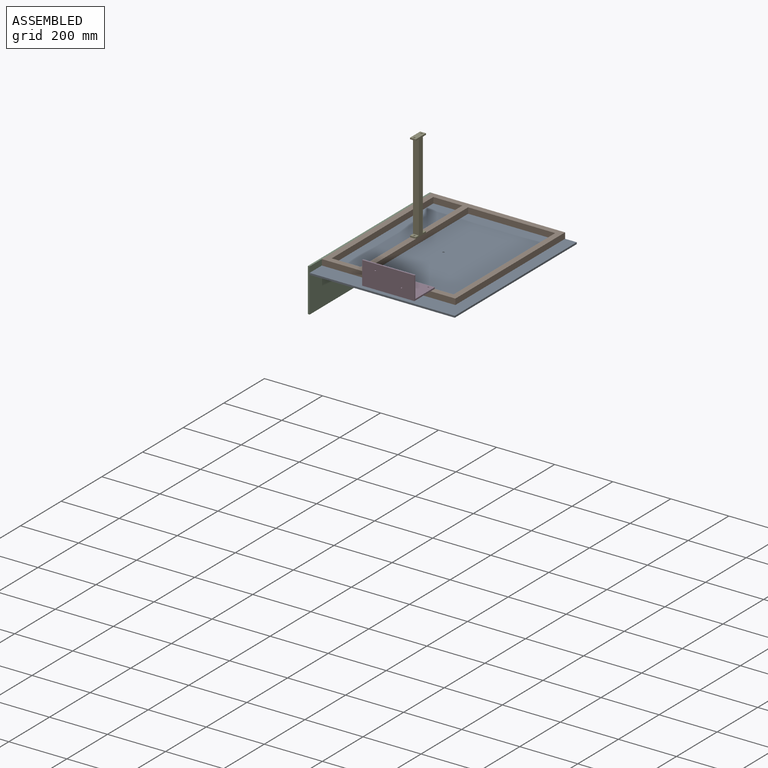
[diagram: assembled view]
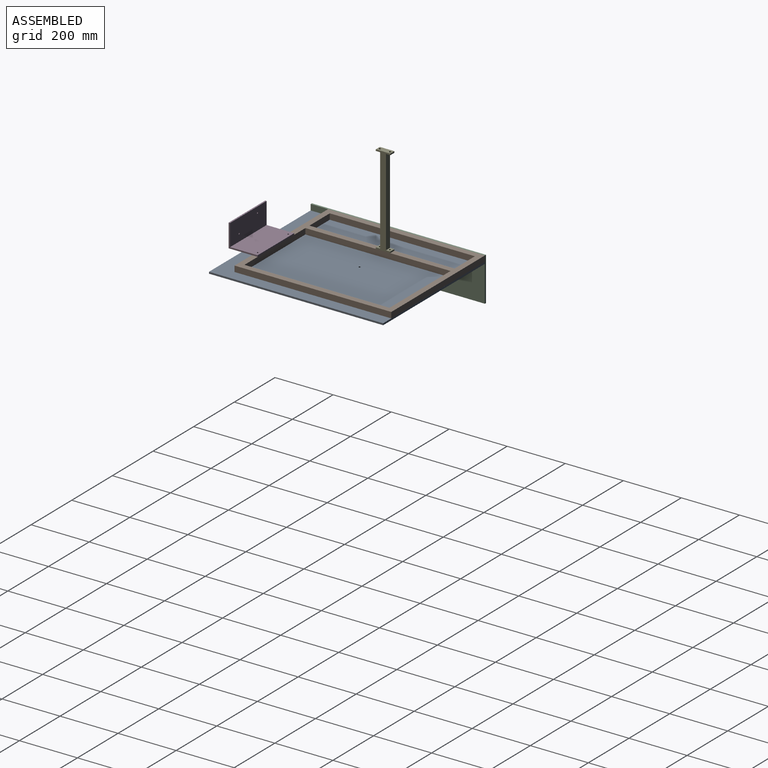
[diagram: assembled view, second angle]
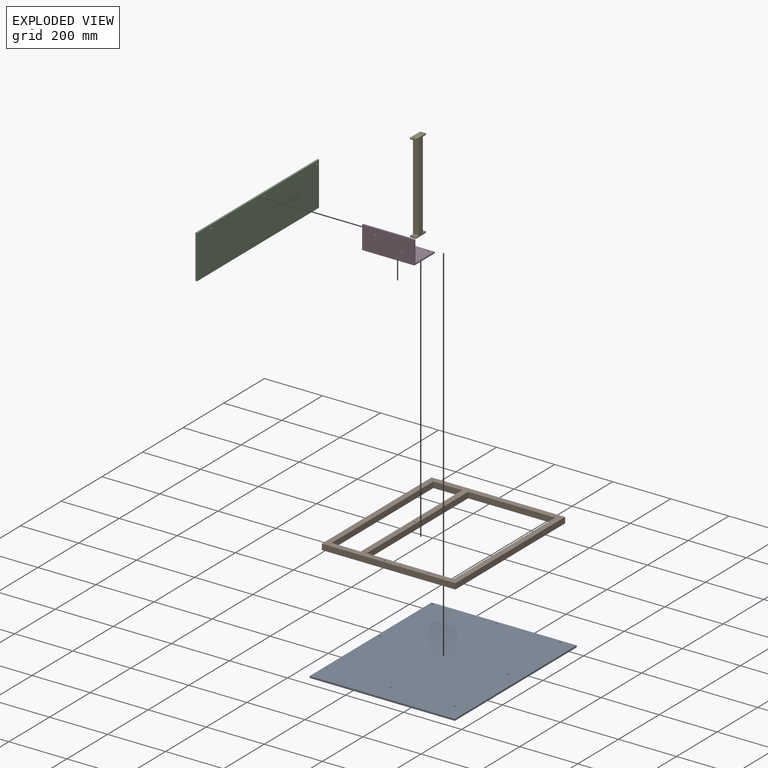
[diagram: exploded view]
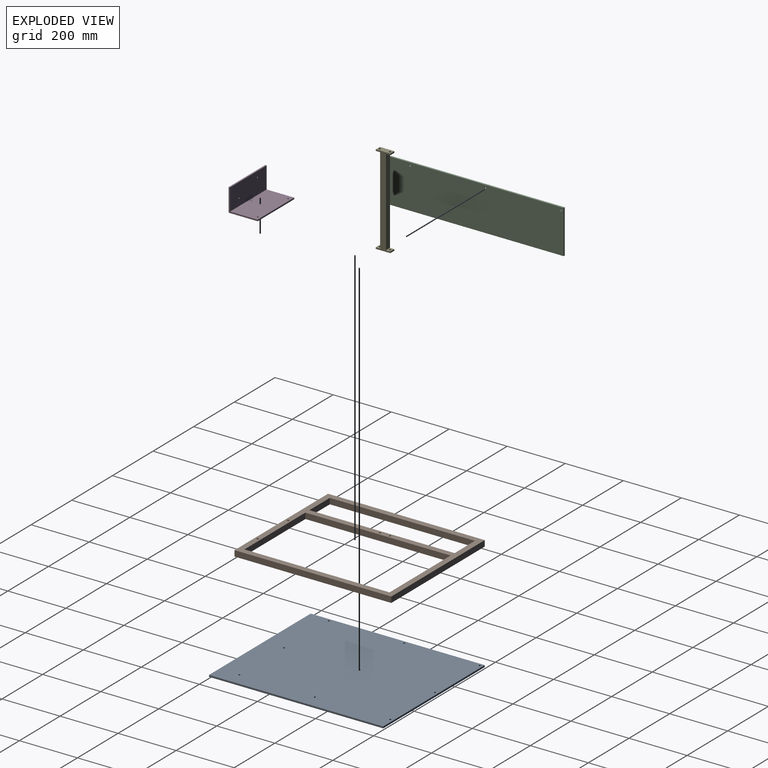
[diagram: exploded view, second angle]
ASSEMBLY  parts=5 mates=4
PART A: 15 faces, bbox 500x600x6 mm
  f0: plane 500x6mm, normal (0,1,0), area 3000mm2, adj f1,f3,f4,f5
  f1: plane 600x6mm, normal (-1,0,0), area 3600mm2, adj f0,f2,f4,f5
  f2: plane 500x6mm, normal (0,-1,0), area 3000mm2, adj f1,f3,f4,f5
  f3: plane 600x6mm, normal (1,0,0), area 3600mm2, adj f0,f2,f4,f5
  f4: plane 600x500mm, normal (0,0,1), area 299701.4mm2, adj f0,f1,f2,f3,f6,f7,f8,f9
  f5: plane 600x500mm, normal (0,0,-1), area 299701.4mm2, adj f0,f1,f2,f3,f6,f7,f8,f9
  f6: cylinder r=3.25mm len=6.5mm, axis (0,0,1), area 122.5mm2, adj f4,f5
  f7: cylinder r=3.25mm len=6.5mm, axis (0,0,1), area 122.5mm2, adj f4,f5
  f8: cylinder r=3.25mm len=6.5mm, axis (0,0,1), area 122.5mm2, adj f4,f5
  f9: cylinder r=3.25mm len=6.5mm, axis (0,0,1), area 122.5mm2, adj f4,f5
  f10: cylinder r=3.25mm len=6.5mm, axis (0,0,1), area 122.5mm2, adj f4,f5
  f11: cylinder r=3.25mm len=6.5mm, axis (0,0,1), area 122.5mm2, adj f4,f5
  f12: cylinder r=3.25mm len=6.5mm, axis (0,0,1), area 122.5mm2, adj f4,f5
  f13: cylinder r=3.25mm len=6.5mm, axis (0,0,1), area 122.5mm2, adj f4,f5
  f14: cylinder r=3.25mm len=6.5mm, axis (0,0,1), area 122.5mm2, adj f4,f5
PART B: 47 faces, bbox 460x540x20 mm
  f0: plane 536x456mm, normal (0,0,-1), area 38651.3mm2, adj f1,f2,f3,f4,f5,f6,f7,f8
  f1: plane 504x16mm, normal (1,0,0), area 8064mm2, adj f0,f2,f3,f10
  f2: plane 104x16mm, normal (0,1,0), area 1664mm2, adj f0,f1,f4,f10
  f3: plane 104x16mm, normal (0,-1,0), area 1664mm2, adj f0,f1,f4,f10
  f4: plane 504x16mm, normal (-1,0,0), area 8064mm2, adj f0,f2,f3,f10
  f5: plane 456x16mm, normal (0,-1,0), area 7296mm2, adj f0,f10,f12,f13
  f6: plane 504x16mm, normal (1,0,0), area 8064mm2, adj f0,f7,f8,f10
  f7: plane 304x16mm, normal (0,1,0), area 4864mm2, adj f0,f6,f9,f10
  f8: plane 304x16mm, normal (0,-1,0), area 4864mm2, adj f0,f6,f9,f10
  f9: plane 504x16mm, normal (-1,0,0), area 8064mm2, adj f0,f7,f8,f10
  f10: plane 536x456mm, normal (0,0,1), area 37920.1mm2, adj f1,f2,f3,f4,f5,f6,f7,f8
  f11: plane 456x16mm, normal (0,1,0), area 7296mm2, adj f0,f10,f12,f13
  f12: plane 536x16mm, normal (-1,0,0), area 8576mm2, adj f0,f5,f10,f11
  f13: plane 536x16mm, normal (1,0,0), area 8517.1mm2, adj f0,f5,f10,f11,f36,f37,f38
  f14: cylinder r=3.25mm len=6.5mm, axis (0,0,-1), area 40.8mm2, adj f0,f22
  f15: cylinder r=3.25mm len=6.5mm, axis (0,0,-1), area 40.8mm2, adj f0,f22
  f16: cylinder r=3.25mm len=6.5mm, axis (0,0,-1), area 40.8mm2, adj f0,f22
  f17: cylinder r=3.25mm len=6.5mm, axis (0,0,-1), area 40.8mm2, adj f0,f22
  f18: plane 300x20mm, normal (0,1,0), area 6000mm2, adj f19,f21,f22,f23
  f19: plane 500x20mm, normal (1,0,0), area 10000mm2, adj f18,f20,f22,f23
  f20: plane 300x20mm, normal (0,-1,0), area 6000mm2, adj f19,f21,f22,f23
  f21: plane 500x20mm, normal (-1,0,0), area 10000mm2, adj f18,f20,f22,f23
  f22: plane 540x460mm, normal (0,0,1), area 48267.3mm2, adj f14,f15,f16,f17,f18,f19,f20,f21
  f23: plane 540x460mm, normal (0,0,-1), area 47536.1mm2, adj f18,f19,f20,f21,f24,f25,f26,f27
  f24: plane 500x20mm, normal (-1,0,0), area 10000mm2, adj f22,f23,f25,f27
  f25: plane 100x20mm, normal (0,1,0), area 2000mm2, adj f22,f23,f24,f26
  f26: plane 500x20mm, normal (1,0,0), area 10000mm2, adj f22,f23,f25,f27
  f27: plane 100x20mm, normal (0,-1,0), area 2000mm2, adj f22,f23,f24,f26
  f28: plane 540x20mm, normal (-1,0,0), area 10741.1mm2, adj f22,f23,f29,f31,f36,f37,f38
  f29: plane 460x20mm, normal (0,-1,0), area 9200mm2, adj f22,f23,f28,f30
  f30: plane 540x20mm, normal (1,0,0), area 10800mm2, adj f22,f23,f29,f31
  f31: plane 460x20mm, normal (0,1,0), area 9200mm2, adj f22,f23,f28,f30
  f32: cylinder r=7.5mm len=15mm, axis (0,0,-1), area 94.2mm2, adj f10,f23
  f33: cylinder r=7.5mm len=15mm, axis (0,0,-1), area 94.2mm2, adj f10,f23
  f34: cylinder r=7.5mm len=15mm, axis (0,0,-1), area 94.2mm2, adj f10,f23
  f35: cylinder r=7.5mm len=15mm, axis (0,0,-1), area 94.2mm2, adj f10,f23
  f36: cylinder r=2.5mm len=5mm, axis (-1,0,0), area 31.4mm2, adj f13,f28
  f37: cylinder r=2.5mm len=5mm, axis (-1,0,0), area 31.4mm2, adj f13,f28
  f38: cylinder r=2.5mm len=5mm, axis (-1,0,0), area 31.4mm2, adj f13,f28
  f39: cylinder r=2.5mm len=5mm, axis (0,0,-1), area 31.4mm2, adj f10,f23
  f40: cylinder r=2.5mm len=5mm, axis (0,0,-1), area 31.4mm2, adj f10,f23
  f41: cylinder r=2.5mm len=5mm, axis (0,0,-1), area 31.4mm2, adj f10,f23
  f42: cylinder r=2.5mm len=5mm, axis (0,0,-1), area 31.4mm2, adj f10,f23
  f43: cylinder r=2.5mm len=5mm, axis (0,0,-1), area 31.4mm2, adj f10,f23
  f44: cylinder r=2.5mm len=5mm, axis (0,0,-1), area 31.4mm2, adj f10,f23
  f45: cylinder r=2.5mm len=5mm, axis (0,0,-1), area 31.4mm2, adj f10,f23
  f46: cylinder r=2.5mm len=5mm, axis (0,0,-1), area 31.4mm2, adj f10,f23
PART C: 9 faces, bbox 6x600x150 mm
  f0: plane 600x6mm, normal (0,0,-1), area 3600mm2, adj f1,f3,f4,f5
  f1: plane 150x6mm, normal (0,1,0), area 900mm2, adj f0,f2,f4,f5
  f2: plane 600x6mm, normal (0,0,1), area 3600mm2, adj f1,f3,f4,f5
  f3: plane 150x6mm, normal (0,-1,0), area 900mm2, adj f0,f2,f4,f5
  f4: plane 600x150mm, normal (1,0,0), area 89900.5mm2, adj f0,f1,f2,f3,f6,f7,f8
  f5: plane 600x150mm, normal (-1,0,0), area 89900.5mm2, adj f0,f1,f2,f3,f6,f7,f8
  f6: cylinder r=3.25mm len=6.5mm, axis (-1,0,0), area 122.5mm2, adj f4,f5
  f7: cylinder r=3.25mm len=6.5mm, axis (-1,0,0), area 122.5mm2, adj f4,f5
  f8: cylinder r=3.25mm len=6.5mm, axis (-1,0,0), area 122.5mm2, adj f4,f5
PART D: 12 faces, bbox 180x100x80 mm
  f0: plane 180x5mm, normal (0,0,-1), area 900mm2, adj f1,f5,f6,f7
  f1: plane 180x80mm, normal (0,1,0), area 14360.7mm2, adj f0,f2,f6,f7,f8,f9
  f2: plane 180x100mm, normal (0,0,1), area 17960.7mm2, adj f1,f3,f6,f7,f10,f11
  f3: plane 180x5mm, normal (0,-1,0), area 900mm2, adj f2,f4,f6,f7
  f4: plane 180x95mm, normal (0,0,-1), area 17060.7mm2, adj f3,f5,f6,f7,f10,f11
  f5: plane 180x75mm, normal (0,-1,0), area 13460.7mm2, adj f0,f4,f6,f7,f8,f9
  f6: plane 100x80mm, normal (1,0,0), area 875mm2, adj f0,f1,f2,f3,f4,f5
  f7: plane 100x80mm, normal (-1,0,0), area 875mm2, adj f0,f1,f2,f3,f4,f5
  f8: cylinder r=2.5mm len=5mm, axis (0,1,0), area 78.5mm2, adj f1,f5
  f9: cylinder r=2.5mm len=5mm, axis (0,1,0), area 78.5mm2, adj f1,f5
  f10: cylinder r=2.5mm len=5mm, axis (0,0,1), area 78.5mm2, adj f2,f4
  f11: cylinder r=2.5mm len=5mm, axis (0,0,1), area 78.5mm2, adj f2,f4
PART E: 24 faces, bbox 20x50x310 mm
  f0: plane 20x15mm, normal (0,0,1), area 266.8mm2, adj f2,f4,f5,f7,f17
  f1: plane 20x15mm, normal (0,0,1), area 266.8mm2, adj f2,f3,f4,f8,f16
  f2: plane 310x50mm, normal (-1,0,0), area 6500mm2, adj f0,f1,f3,f5,f6,f7,f8,f9
  f3: plane 20x5mm, normal (0,-1,0), area 100mm2, adj f1,f2,f4,f6
  f4: plane 310x50mm, normal (1,0,0), area 6500mm2, adj f0,f1,f3,f5,f6,f7,f8,f9
  f5: plane 20x5mm, normal (0,1,0), area 100mm2, adj f0,f2,f4,f6
  f6: plane 50x20mm, normal (0,0,-1), area 933.6mm2, adj f2,f3,f4,f5,f16,f17
  f7: plane 300x20mm, normal (0,1,0), area 6000mm2, adj f0,f2,f4,f13
  f8: plane 300x20mm, normal (0,-1,0), area 6000mm2, adj f1,f2,f4,f9
  f9: plane 20x15mm, normal (0,0,-1), area 266.8mm2, adj f2,f4,f8,f11,f15
  f10: plane 20x5mm, normal (0,1,0), area 100mm2, adj f2,f4,f12,f13
  f11: plane 20x5mm, normal (0,-1,0), area 100mm2, adj f2,f4,f9,f12
  f12: plane 50x20mm, normal (0,0,1), area 933.6mm2, adj f2,f4,f10,f11,f14,f15
  f13: plane 20x15mm, normal (0,0,-1), area 266.8mm2, adj f2,f4,f7,f10,f14
  f14: cylinder r=3.25mm len=6.5mm, axis (0,0,1), area 102.1mm2, adj f12,f13
  f15: cylinder r=3.25mm len=6.5mm, axis (0,0,1), area 102.1mm2, adj f9,f12
  f16: cylinder r=3.25mm len=6.5mm, axis (0,0,1), area 102.1mm2, adj f1,f6
  f17: cylinder r=3.25mm len=6.5mm, axis (0,0,1), area 102.1mm2, adj f0,f6
  f18: plane 16x16mm, normal (0,0,1), area 256mm2, adj f19,f20,f21,f22
  f19: plane 300x16mm, normal (1,0,0), area 4800mm2, adj f18,f20,f22,f23
  f20: plane 300x16mm, normal (0,1,0), area 4800mm2, adj f18,f19,f21,f23
  f21: plane 300x16mm, normal (-1,0,0), area 4800mm2, adj f18,f20,f22,f23
  f22: plane 300x16mm, normal (0,-1,0), area 4800mm2, adj f18,f19,f21,f23
  f23: plane 16x16mm, normal (0,0,-1), area 256mm2, adj f19,f20,f21,f22
PLACE A rot(axis=(1,0,0),180deg) t=(118.44,111.16,111.5)mm
PLACE B t=(8.44,-108.84,111.5)mm
PLACE C rot(axis=(1,0,0),180deg) t=(-137.56,111.16,56.5)mm
PLACE D rot(axis=(1,0,0),180deg) t=(63.44,-208.84,211.5)mm
PLACE E t=(-1.56,158.66,131.5)mm
MATE fastened C.f8 <-> B.f36  axis (1,0,0) through (-131.56,401.16,121.5)mm
MATE fastened D.f10 <-> B.f16  axis (0,0,-1) through (228.44,-118.84,131.5)mm
MATE fastened E.f15 <-> B.f14  axis (0,0,-1) through (-1.56,141.16,131.5)mm
MATE fastened A.f13 <-> B.f44  axis (0,0,1) through (-121.56,401.16,111.5)mm
